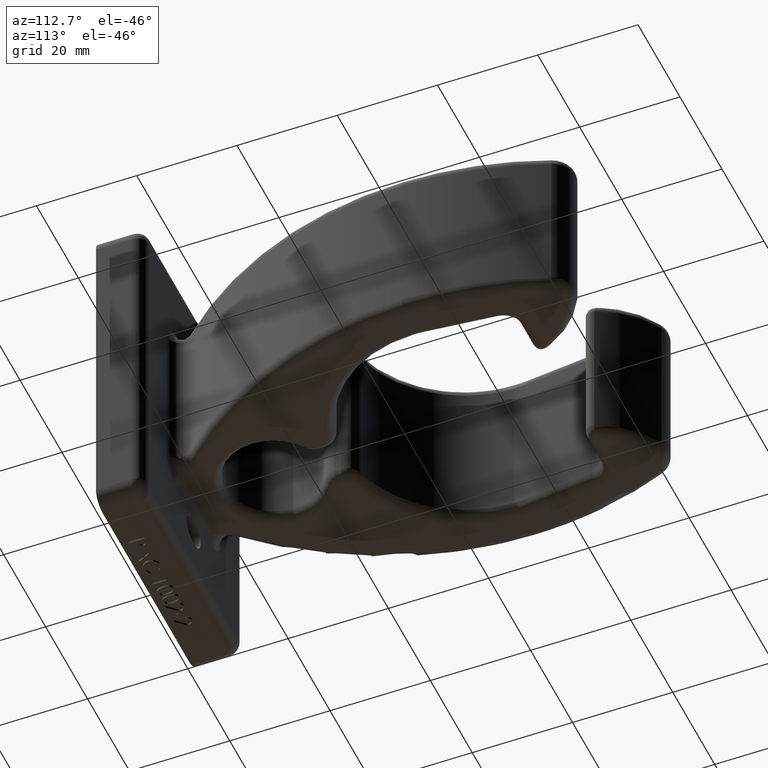
[diagram: clean part render]
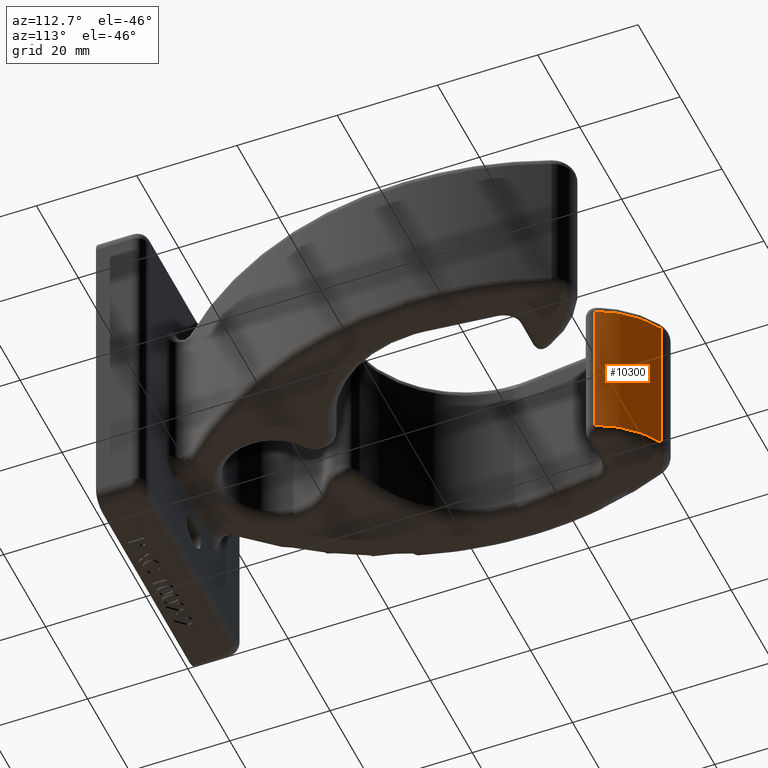
[diagram: same view with one face highlighted and labeled with its STEP entity id]
A machine part, auxiliary view. The second image highlights one B-rep face of the part: STEP entity #10300.
In plain terms, the highlighted cylindrical surface (partial cylindrical patch) has radius 19.05 mm, axis along (-0, -0, -1).
Its self-contained STEP definition (entity closure, byte-faithful):
#1223 = AXIS2_PLACEMENT_3D ( 'NONE', #3094, #11868, #13075 ) ;
#1779 = DIRECTION ( 'NONE',  ( 0.0000000000000000000, 0.0000000000000000000, 1.000000000000000000 ) ) ;
#2154 = VECTOR ( 'NONE', #6383, 39.37007874015748100 ) ;
#2181 = CARTESIAN_POINT ( 'NONE',  ( -1.137447155958627200, 3.054978402147979100, 0.5937500000000000000 ) ) ;
#2596 = DIRECTION ( 'NONE',  ( -0.0000000000000000000, -0.0000000000000000000, -1.000000000000000000 ) ) ;
#3023 = EDGE_CURVE ( 'NONE', #6065, #6118, #8218, .T. ) ;
#3094 = CARTESIAN_POINT ( 'NONE',  ( -1.137447155958627200, 3.054978402147979100, 0.6875000000000000000 ) ) ;
#3200 = ORIENTED_EDGE ( 'NONE', *, *, #9329, .T. ) ;
#3437 = DIRECTION ( 'NONE',  ( 1.000000000000000000, -5.099449588173289800E-015, 0.0000000000000000000 ) ) ;
#4299 = VECTOR ( 'NONE', #2596, 39.37007874015748100 ) ;
#5205 = EDGE_LOOP ( 'NONE', ( #11411, #6491, #6755, #3200 ) ) ;
#5779 = EDGE_CURVE ( 'NONE', #10841, #6118, #7647, .T. ) ;
#6065 = VERTEX_POINT ( 'NONE', #15567 ) ;
#6118 = VERTEX_POINT ( 'NONE', #11030 ) ;
#6383 = DIRECTION ( 'NONE',  ( -0.0000000000000000000, -0.0000000000000000000, -1.000000000000000000 ) ) ;
#6491 = ORIENTED_EDGE ( 'NONE', *, *, #3023, .T. ) ;
#6664 = VERTEX_POINT ( 'NONE', #15418 ) ;
#6755 = ORIENTED_EDGE ( 'NONE', *, *, #5779, .F. ) ;
#7055 = EDGE_CURVE ( 'NONE', #6664, #6065, #11358, .T. ) ;
#7647 = LINE ( 'NONE', #8848, #4299 ) ;
#8218 = CIRCLE ( 'NONE', #15409, 0.7500000000000001100 ) ;
#8848 = CARTESIAN_POINT ( 'NONE',  ( -0.7875176146804573300, 3.718340532617340000, 0.6875000000000000000 ) ) ;
#8973 = CIRCLE ( 'NONE', #15658, 0.7500000000000001100 ) ;
#9299 = CARTESIAN_POINT ( 'NONE',  ( -1.137447155958627200, 3.054978402147979100, -0.5937499999999998900 ) ) ;
#9329 = EDGE_CURVE ( 'NONE', #10841, #6664, #8973, .T. ) ;
#9742 = FACE_OUTER_BOUND ( 'NONE', #5205, .T. ) ;
#10300 = ADVANCED_FACE ( 'NONE', ( #9742 ), #15672, .T. ) ;
#10538 = DIRECTION ( 'NONE',  ( 1.000000000000000000, 0.0000000000000000000, 0.0000000000000000000 ) ) ;
#10841 = VERTEX_POINT ( 'NONE', #15376 ) ;
#10936 = DIRECTION ( 'NONE',  ( -0.0000000000000000000, -0.0000000000000000000, -1.000000000000000000 ) ) ;
#11030 = CARTESIAN_POINT ( 'NONE',  ( -0.7875176146804573300, 3.718340532617340000, -0.5937499999999998900 ) ) ;
#11358 = LINE ( 'NONE', #15166, #2154 ) ;
#11411 = ORIENTED_EDGE ( 'NONE', *, *, #7055, .T. ) ;
#11868 = DIRECTION ( 'NONE',  ( -0.0000000000000000000, -0.0000000000000000000, -1.000000000000000000 ) ) ;
#13075 = DIRECTION ( 'NONE',  ( -1.000000000000000000, 0.0000000000000000000, 0.0000000000000000000 ) ) ;
#15166 = CARTESIAN_POINT ( 'NONE',  ( -0.4420502585492165300, 3.335911054350184200, 0.6875000000000000000 ) ) ;
#15376 = CARTESIAN_POINT ( 'NONE',  ( -0.7875176146804573300, 3.718340532617340000, 0.5937500000000000000 ) ) ;
#15409 = AXIS2_PLACEMENT_3D ( 'NONE', #9299, #1779, #10538 ) ;
#15418 = CARTESIAN_POINT ( 'NONE',  ( -0.4420502585492165300, 3.335911054350184200, 0.5937500000000000000 ) ) ;
#15567 = CARTESIAN_POINT ( 'NONE',  ( -0.4420502585492165300, 3.335911054350184200, -0.5937499999999998900 ) ) ;
#15658 = AXIS2_PLACEMENT_3D ( 'NONE', #2181, #10936, #3437 ) ;
#15672 = CYLINDRICAL_SURFACE ( 'NONE', #1223, 0.7500000000000002200 ) ;